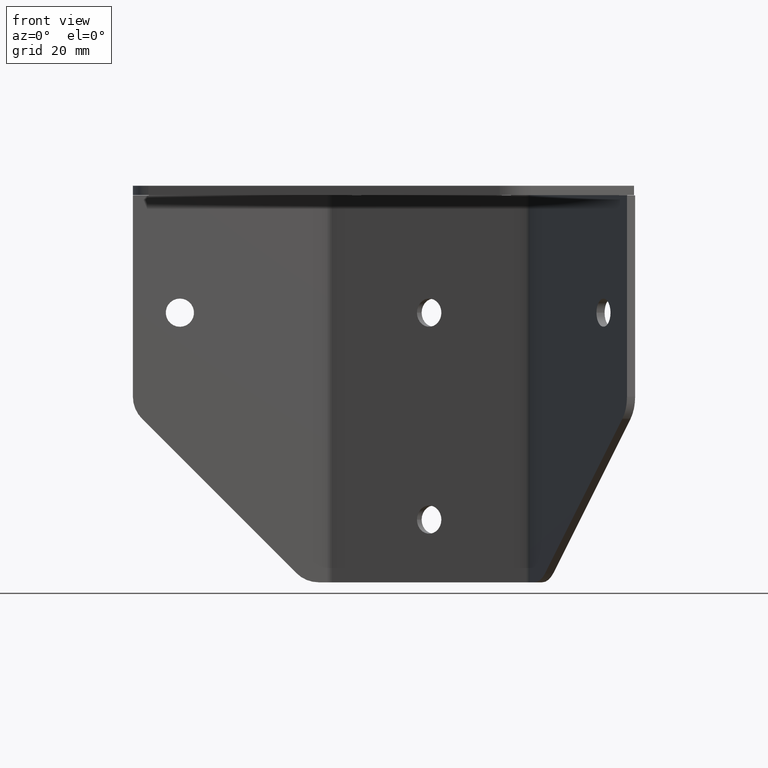
[diagram: clean part render]
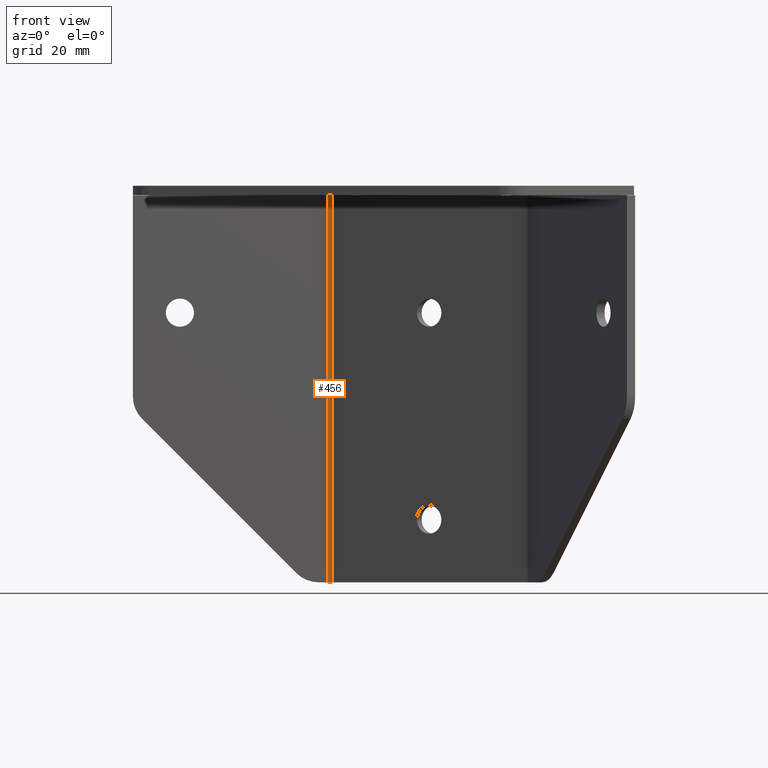
[diagram: same view with one face highlighted and labeled with its STEP entity id]
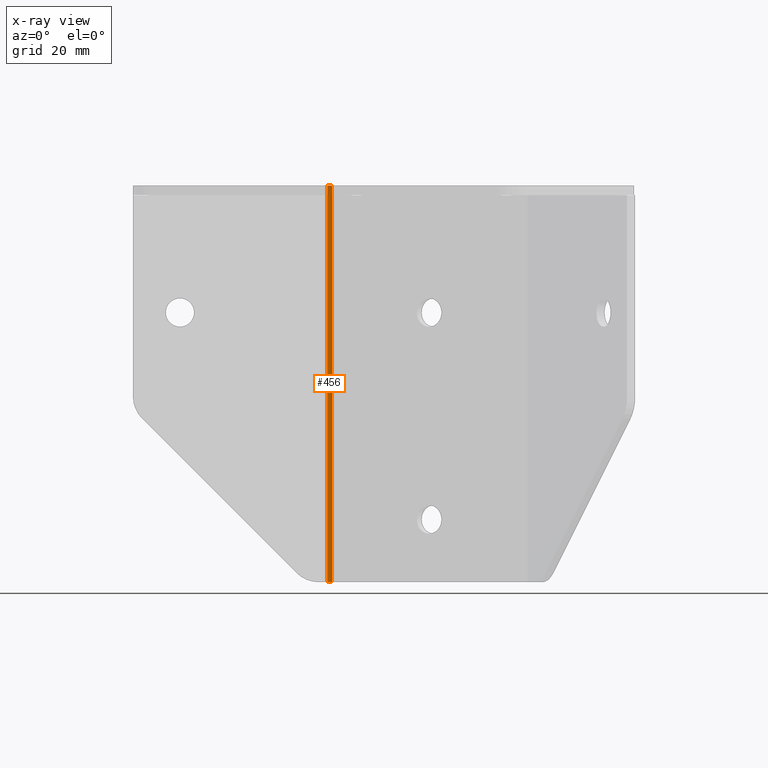
[diagram: x-ray of the same camera — body ghosted, the highlighted face saturated]
A machine part, front view. The second image highlights one B-rep face of the part: STEP entity #456.
The next image is the same camera in x-ray: the body ghosted, the highlighted face saturated — about 2% of this face is hidden behind the body in this view.
In plain terms, the highlighted cylindrical surface (edge-blend (fillet) strip) has radius 3 mm, axis along (0, 0, 1).
Its self-contained STEP definition (entity closure, byte-faithful):
#103 = DIRECTION ( 'NONE',  ( 0.000000000000000000, 0.000000000000000000, 1.000000000000000000 ) ) ;
#243 = CIRCLE ( 'NONE', #1853, 3.000000000000002665 ) ;
#278 = CARTESIAN_POINT ( 'NONE',  ( 586.9999884583739913, 1091.305264068951146, 1133.999999999999545 ) ) ;
#413 = EDGE_CURVE ( 'NONE', #894, #1670, #1513, .T. ) ;
#416 = EDGE_LOOP ( 'NONE', ( #1450, #1842, #2739, #2938 ) ) ;
#422 = CARTESIAN_POINT ( 'NONE',  ( 588.4999884583739913, 1090.903340280304519, 1133.999999999999545 ) ) ;
#456 = ADVANCED_FACE ( 'NONE', ( #2139 ), #2634, .F. ) ;
#754 = CARTESIAN_POINT ( 'NONE',  ( 586.9999884583739913, 1088.305264068951146, 1133.999999999999545 ) ) ;
#804 = DIRECTION ( 'NONE',  ( 1.000000000000000000, 0.000000000000000000, 0.000000000000000000 ) ) ;
#894 = VERTEX_POINT ( 'NONE', #422 ) ;
#1208 = DIRECTION ( 'NONE',  ( 0.000000000000000000, 0.000000000000000000, 1.000000000000000000 ) ) ;
#1263 = DIRECTION ( 'NONE',  ( 0.000000000000000000, 0.000000000000000000, 1.000000000000000000 ) ) ;
#1374 = VERTEX_POINT ( 'NONE', #278 ) ;
#1402 = DIRECTION ( 'NONE',  ( 0.000000000000000000, -0.000000000000000000, -1.000000000000000000 ) ) ;
#1427 = EDGE_CURVE ( 'NONE', #2997, #1670, #2246, .T. ) ;
#1437 = DIRECTION ( 'NONE',  ( 1.000000000000000000, 0.000000000000000000, 0.000000000000000000 ) ) ;
#1450 = ORIENTED_EDGE ( 'NONE', *, *, #413, .T. ) ;
#1513 = LINE ( 'NONE', #2937, #2444 ) ;
#1670 = VERTEX_POINT ( 'NONE', #1947 ) ;
#1769 = CARTESIAN_POINT ( 'NONE',  ( 586.9999884583739913, 1088.305264068951146, 1260.499999999999545 ) ) ;
#1829 = CARTESIAN_POINT ( 'NONE',  ( 586.9999884583739913, 1088.305264068951146, 1133.999999999999545 ) ) ;
#1842 = ORIENTED_EDGE ( 'NONE', *, *, #1427, .F. ) ;
#1853 = AXIS2_PLACEMENT_3D ( 'NONE', #1829, #1402, #2410 ) ;
#1875 = EDGE_CURVE ( 'NONE', #1374, #2997, #1973, .T. ) ;
#1947 = CARTESIAN_POINT ( 'NONE',  ( 588.4999884583739913, 1090.903340280304519, 1260.499999999999545 ) ) ;
#1973 = LINE ( 'NONE', #2221, #2809 ) ;
#2139 = FACE_OUTER_BOUND ( 'NONE', #416, .T. ) ;
#2221 = CARTESIAN_POINT ( 'NONE',  ( 586.9999884583739913, 1091.305264068951146, 1133.999999999999545 ) ) ;
#2246 = CIRCLE ( 'NONE', #2957, 3.000000000000002665 ) ;
#2390 = CARTESIAN_POINT ( 'NONE',  ( 586.9999884583739913, 1091.305264068951146, 1260.499999999999545 ) ) ;
#2410 = DIRECTION ( 'NONE',  ( 1.000000000000000000, 0.000000000000000000, 0.000000000000000000 ) ) ;
#2444 = VECTOR ( 'NONE', #1263, 1000.000000000000000 ) ;
#2485 = EDGE_CURVE ( 'NONE', #1374, #894, #243, .T. ) ;
#2600 = AXIS2_PLACEMENT_3D ( 'NONE', #754, #1208, #1437 ) ;
#2634 = CYLINDRICAL_SURFACE ( 'NONE', #2600, 3.000000000000002665 ) ;
#2739 = ORIENTED_EDGE ( 'NONE', *, *, #1875, .F. ) ;
#2809 = VECTOR ( 'NONE', #103, 1000.000000000000000 ) ;
#2937 = CARTESIAN_POINT ( 'NONE',  ( 588.4999884583739913, 1090.903340280304519, 1133.999999999999545 ) ) ;
#2938 = ORIENTED_EDGE ( 'NONE', *, *, #2485, .T. ) ;
#2957 = AXIS2_PLACEMENT_3D ( 'NONE', #1769, #2963, #804 ) ;
#2963 = DIRECTION ( 'NONE',  ( 0.000000000000000000, -0.000000000000000000, -1.000000000000000000 ) ) ;
#2997 = VERTEX_POINT ( 'NONE', #2390 ) ;